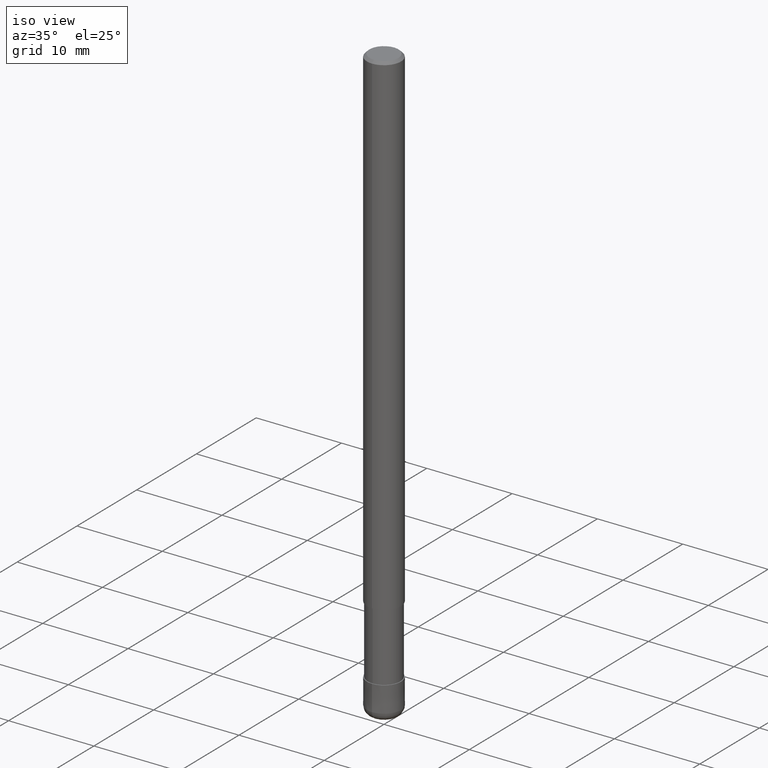
[diagram: clean part render]
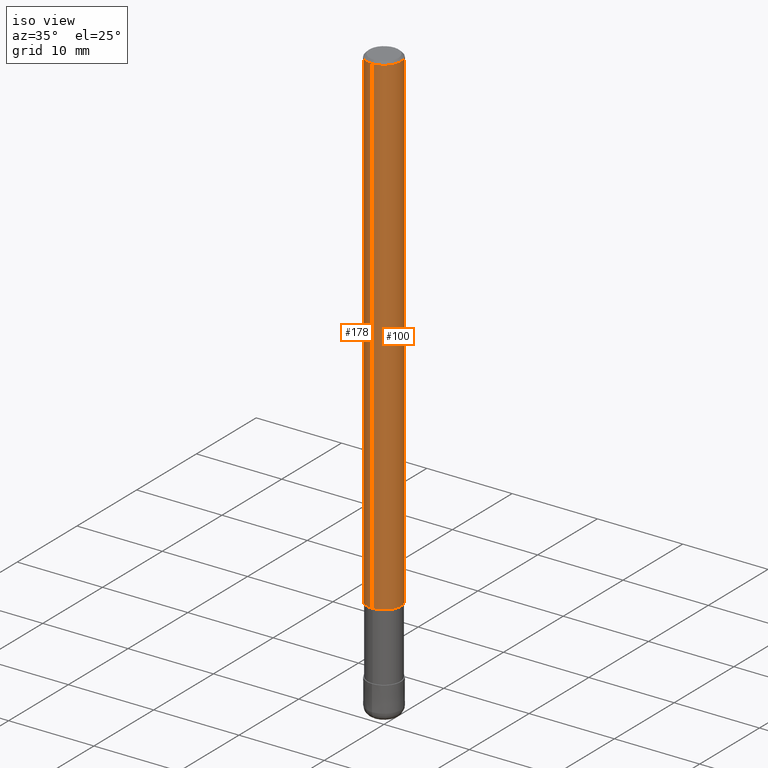
[diagram: same view with one multi-face feature highlighted, each face labeled with its STEP entity id]
A machine part, iso view. The highlighted faces form ONE feature: a constant-radius fillet chain: 2 tangent blend faces with common blend radius 2 mm. The faces share edges in the B-rep.
Their STEP definitions:
[1] entity #178 (Cylinder):
#122=EDGE_CURVE('',#174,#180,#265,.T.);
#138=EDGE_CURVE('',#168,#174,#281,.T.);
#166=EDGE_CURVE('',#180,#188,#312,.T.);
#168=VERTEX_POINT('',#314);
#174=VERTEX_POINT('',#321);
#178=ADVANCED_FACE('',(#325),#326,.T.);
#180=VERTEX_POINT('',#328);
#188=VERTEX_POINT('',#338);
#208=EDGE_CURVE('',#168,#188,#361,.T.);
#265=CIRCLE('',#415,2.0);
#281=LINE('',#438,#439);
#312=LINE('',#478,#479);
#314=CARTESIAN_POINT('',(2.44921270764475E-016,-2.0,-58.0));
#321=CARTESIAN_POINT('',(2.44921270764475E-016,-2.0,-0.299999999999997));
#325=FACE_OUTER_BOUND('',#495,.T.);
#326=CYLINDRICAL_SURFACE('',#496,2.0);
#328=CARTESIAN_POINT('',(0.0,2.0,-0.299999999999997));
#338=CARTESIAN_POINT('',(0.0,2.0,-58.0));
#361=CIRCLE('',#538,2.0);
#415=AXIS2_PLACEMENT_3D('',#593,#594,#595);
#438=CARTESIAN_POINT('',(2.44921270764475E-016,-2.0,-29.15));
#439=VECTOR('',#609,1.0);
#478=CARTESIAN_POINT('',(-2.44921270764475E-016,2.0,-29.15));
#479=VECTOR('',#649,1.0);
#495=EDGE_LOOP('',(#663,#664,#665,#666));
#496=AXIS2_PLACEMENT_3D('',#667,#668,#669);
#538=AXIS2_PLACEMENT_3D('',#713,#714,#715);
#593=CARTESIAN_POINT('',(0.0,0.0,-0.299999999999997));
#594=DIRECTION('',(0.0,0.0,-1.0));
#595=DIRECTION('',(0.0,1.0,0.0));
#609=DIRECTION('',(-0.0,-0.0,1.0));
#649=DIRECTION('',(0.0,0.0,-1.0));
#663=ORIENTED_EDGE('',*,*,#166,.T.);
#664=ORIENTED_EDGE('',*,*,#208,.F.);
#665=ORIENTED_EDGE('',*,*,#138,.T.);
#666=ORIENTED_EDGE('',*,*,#122,.T.);
#667=CARTESIAN_POINT('',(0.0,0.0,-29.15));
#668=DIRECTION('',(-0.0,-0.0,1.0));
#669=DIRECTION('',(0.0,1.0,0.0));
#713=CARTESIAN_POINT('',(0.0,0.0,-58.0));
#714=DIRECTION('',(0.0,0.0,-1.0));
#715=DIRECTION('',(0.0,1.0,0.0));
[2] entity #100 (Cylinder):
#100=ADVANCED_FACE('',(#237),#238,.T.);
#138=EDGE_CURVE('',#168,#174,#281,.T.);
#150=EDGE_CURVE('',#180,#174,#294,.T.);
#156=EDGE_CURVE('',#188,#168,#300,.T.);
#166=EDGE_CURVE('',#180,#188,#312,.T.);
#168=VERTEX_POINT('',#314);
#174=VERTEX_POINT('',#321);
#180=VERTEX_POINT('',#328);
#188=VERTEX_POINT('',#338);
#237=FACE_OUTER_BOUND('',#385,.T.);
#238=CYLINDRICAL_SURFACE('',#386,2.0);
#281=LINE('',#438,#439);
#294=CIRCLE('',#458,2.0);
#300=CIRCLE('',#466,2.0);
#312=LINE('',#478,#479);
#314=CARTESIAN_POINT('',(2.44921270764475E-016,-2.0,-58.0));
#321=CARTESIAN_POINT('',(2.44921270764475E-016,-2.0,-0.299999999999997));
#328=CARTESIAN_POINT('',(0.0,2.0,-0.299999999999997));
#338=CARTESIAN_POINT('',(0.0,2.0,-58.0));
#385=EDGE_LOOP('',(#545,#546,#547,#548));
#386=AXIS2_PLACEMENT_3D('',#549,#550,#551);
#438=CARTESIAN_POINT('',(2.44921270764475E-016,-2.0,-29.15));
#439=VECTOR('',#609,1.0);
#458=AXIS2_PLACEMENT_3D('',#626,#627,#628);
#466=AXIS2_PLACEMENT_3D('',#631,#632,#633);
#478=CARTESIAN_POINT('',(-2.44921270764475E-016,2.0,-29.15));
#479=VECTOR('',#649,1.0);
#545=ORIENTED_EDGE('',*,*,#166,.F.);
#546=ORIENTED_EDGE('',*,*,#150,.T.);
#547=ORIENTED_EDGE('',*,*,#138,.F.);
#548=ORIENTED_EDGE('',*,*,#156,.F.);
#549=CARTESIAN_POINT('',(0.0,0.0,-29.15));
#550=DIRECTION('',(-0.0,-0.0,1.0));
#551=DIRECTION('',(0.0,1.0,0.0));
#609=DIRECTION('',(-0.0,-0.0,1.0));
#626=CARTESIAN_POINT('',(0.0,0.0,-0.299999999999997));
#627=DIRECTION('',(0.0,0.0,-1.0));
#628=DIRECTION('',(0.0,1.0,0.0));
#631=CARTESIAN_POINT('',(0.0,0.0,-58.0));
#632=DIRECTION('',(0.0,0.0,-1.0));
#633=DIRECTION('',(0.0,1.0,0.0));
#649=DIRECTION('',(0.0,0.0,-1.0));